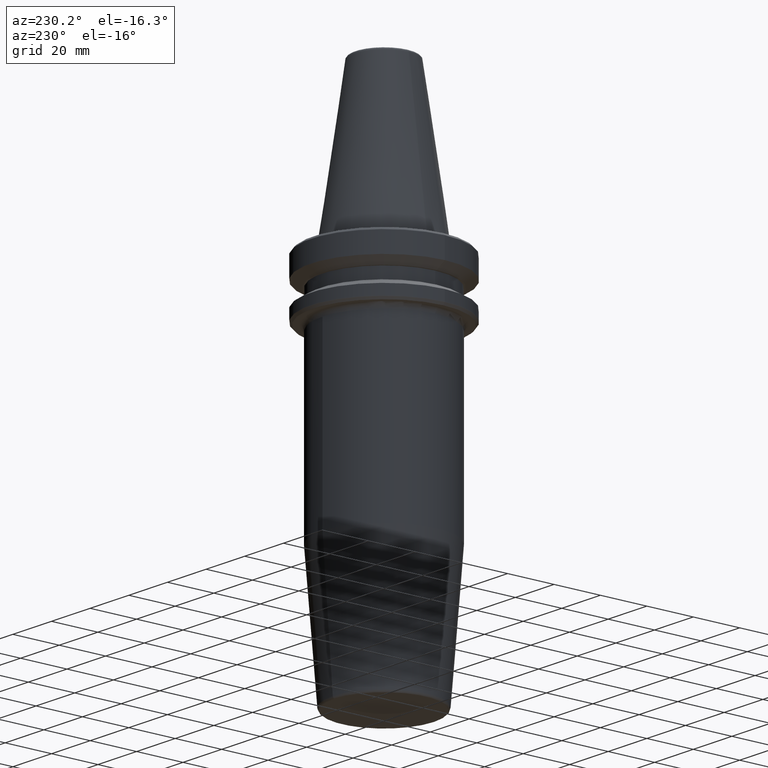
[diagram: clean part render]
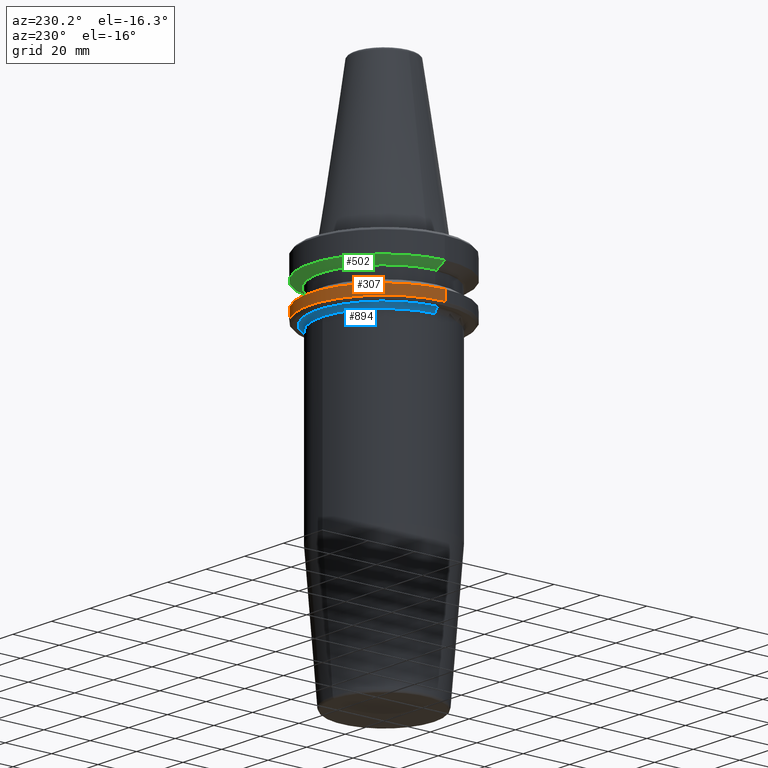
[diagram: same view with three faces highlighted in distinct colors, each labeled with its STEP entity id]
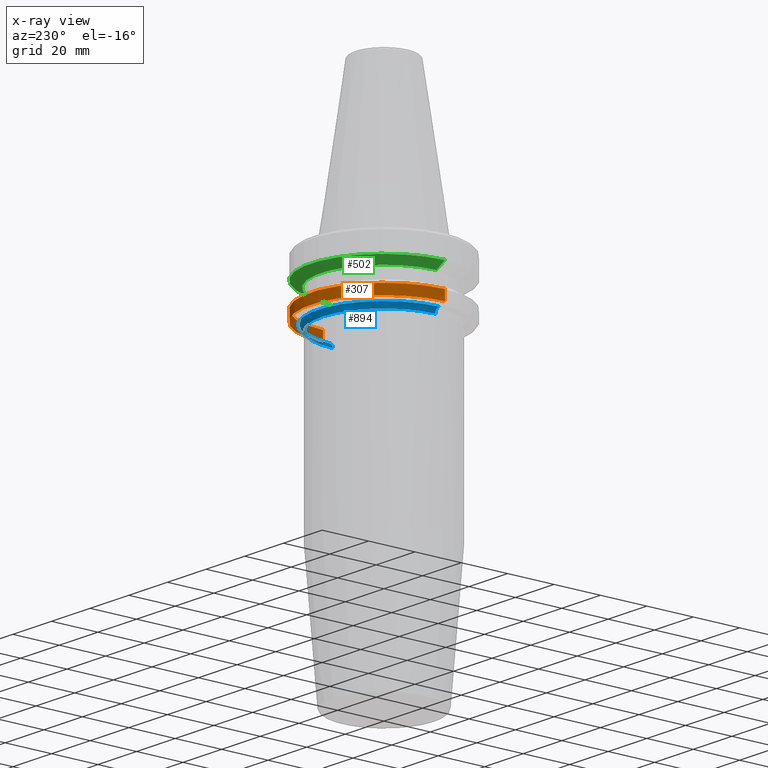
[diagram: x-ray of the same camera — body ghosted, the three highlighted faces saturated]
A machine part, auxiliary view with three faces highlighted in distinct colors.
The next image is the same camera in x-ray (body ghosted, the three faces saturated) — at least one of them is partly hidden behind the body in this view.
Their STEP definitions:

[orange] entity #307 — the highlighted cylindrical surface (partial cylindrical patch) has radius 31.5 mm, axis along (-0, -0, 1).
#71 = EDGE_CURVE ( 'NONE', #1021, #1263, #511, .T. ) ;
#143 = VECTOR ( 'NONE', #1161, 1000.000000000000000 ) ;
#228 = CARTESIAN_POINT ( 'NONE',  ( 0.0000000000000000000, 0.0000000000000000000, 69.75694866325665100 ) ) ;
#234 = CARTESIAN_POINT ( 'NONE',  ( 31.50000000000000000, 0.0000000000000000000, -25.83431457505076900 ) ) ;
#241 = CARTESIAN_POINT ( 'NONE',  ( 0.0000000000000000000, 0.0000000000000000000, -25.83431457505076900 ) ) ;
#275 = EDGE_CURVE ( 'NONE', #1021, #503, #683, .T. ) ;
#291 = DIRECTION ( 'NONE',  ( -0.0000000000000000000, -0.0000000000000000000, 1.000000000000000000 ) ) ;
#307 = ADVANCED_FACE ( 'NONE', ( #657 ), #1118, .T. ) ;
#367 = CARTESIAN_POINT ( 'NONE',  ( 31.50000000000000000, 0.0000000000000000000, 69.75694866325665100 ) ) ;
#456 = CARTESIAN_POINT ( 'NONE',  ( -31.50000000000000000, 3.857637417314162700E-015, -21.60014200631675500 ) ) ;
#473 = DIRECTION ( 'NONE',  ( -0.0000000000000000000, -0.0000000000000000000, 1.000000000000000000 ) ) ;
#477 = EDGE_CURVE ( 'NONE', #1263, #1143, #956, .T. ) ;
#493 = AXIS2_PLACEMENT_3D ( 'NONE', #241, #291, #972 ) ;
#503 = VERTEX_POINT ( 'NONE', #740 ) ;
#511 = CIRCLE ( 'NONE', #493, 31.50000000000000000 ) ;
#525 = EDGE_LOOP ( 'NONE', ( #646, #728, #808, #1281 ) ) ;
#559 = DIRECTION ( 'NONE',  ( -0.0000000000000000000, -0.0000000000000000000, 1.000000000000000000 ) ) ;
#646 = ORIENTED_EDGE ( 'NONE', *, *, #71, .T. ) ;
#657 = FACE_OUTER_BOUND ( 'NONE', #525, .T. ) ;
#666 = CARTESIAN_POINT ( 'NONE',  ( -31.50000000000000000, 3.857637417314162700E-015, -25.83431457505076900 ) ) ;
#683 = LINE ( 'NONE', #367, #143 ) ;
#701 = VECTOR ( 'NONE', #559, 1000.000000000000000 ) ;
#728 = ORIENTED_EDGE ( 'NONE', *, *, #477, .T. ) ;
#734 = AXIS2_PLACEMENT_3D ( 'NONE', #228, #751, #920 ) ;
#740 = CARTESIAN_POINT ( 'NONE',  ( 31.50000000000000000, 0.0000000000000000000, -21.60014200631675500 ) ) ;
#751 = DIRECTION ( 'NONE',  ( -0.0000000000000000000, -0.0000000000000000000, 1.000000000000000000 ) ) ;
#808 = ORIENTED_EDGE ( 'NONE', *, *, #1241, .F. ) ;
#819 = AXIS2_PLACEMENT_3D ( 'NONE', #1061, #473, #1158 ) ;
#920 = DIRECTION ( 'NONE',  ( 1.000000000000000000, 0.0000000000000000000, 0.0000000000000000000 ) ) ;
#956 = LINE ( 'NONE', #1206, #701 ) ;
#972 = DIRECTION ( 'NONE',  ( 1.000000000000000000, 0.0000000000000000000, 0.0000000000000000000 ) ) ;
#1021 = VERTEX_POINT ( 'NONE', #234 ) ;
#1061 = CARTESIAN_POINT ( 'NONE',  ( 0.0000000000000000000, 0.0000000000000000000, -21.60014200631675500 ) ) ;
#1118 = CYLINDRICAL_SURFACE ( 'NONE', #734, 31.50000000000000000 ) ;
#1143 = VERTEX_POINT ( 'NONE', #456 ) ;
#1158 = DIRECTION ( 'NONE',  ( 1.000000000000000000, 0.0000000000000000000, 0.0000000000000000000 ) ) ;
#1161 = DIRECTION ( 'NONE',  ( -0.0000000000000000000, -0.0000000000000000000, 1.000000000000000000 ) ) ;
#1206 = CARTESIAN_POINT ( 'NONE',  ( -31.50000000000000000, 3.857637417314162700E-015, 69.75694866325665100 ) ) ;
#1241 = EDGE_CURVE ( 'NONE', #503, #1143, #1259, .T. ) ;
#1259 = CIRCLE ( 'NONE', #819, 31.50000000000000000 ) ;
#1263 = VERTEX_POINT ( 'NONE', #666 ) ;
#1281 = ORIENTED_EDGE ( 'NONE', *, *, #275, .F. ) ;

[blue] entity #894 — the highlighted toroidal blend (fillet) surface has major radius 28.5 mm and minor (blend) radius 2 mm.
#100 = CARTESIAN_POINT ( 'NONE',  ( 0.0000000000000000000, 1.510090789926056700E-016, -28.99999999999999600 ) ) ;
#130 = DIRECTION ( 'NONE',  ( -1.000000000000000000, 0.0000000000000000000, 0.0000000000000000000 ) ) ;
#139 = CIRCLE ( 'NONE', #186, 26.49999999999999300 ) ;
#167 = CARTESIAN_POINT ( 'NONE',  ( 28.49999999999998900, 3.641252456562561600E-015, -27.00000000000000000 ) ) ;
#186 = AXIS2_PLACEMENT_3D ( 'NONE', #334, #1009, #428 ) ;
#200 = ORIENTED_EDGE ( 'NONE', *, *, #1075, .F. ) ;
#207 = FACE_OUTER_BOUND ( 'NONE', #1067, .T. ) ;
#219 = VERTEX_POINT ( 'NONE', #1020 ) ;
#300 = CARTESIAN_POINT ( 'NONE',  ( -28.49999999999998900, 1.510090789926056700E-016, -28.99999999999999600 ) ) ;
#327 = DIRECTION ( 'NONE',  ( -1.000000000000000000, 0.0000000000000000000, 0.0000000000000000000 ) ) ;
#330 = EDGE_CURVE ( 'NONE', #488, #1057, #852, .T. ) ;
#334 = CARTESIAN_POINT ( 'NONE',  ( 0.0000000000000000000, 1.510090789926056700E-016, -28.99999999999999600 ) ) ;
#362 = AXIS2_PLACEMENT_3D ( 'NONE', #300, #979, #401 ) ;
#379 = CIRCLE ( 'NONE', #1058, 2.000000000000001800 ) ;
#397 = EDGE_CURVE ( 'NONE', #630, #219, #565, .T. ) ;
#401 = DIRECTION ( 'NONE',  ( 0.0000000000000000000, 0.0000000000000000000, -1.000000000000000000 ) ) ;
#428 = DIRECTION ( 'NONE',  ( -1.000000000000000000, 0.0000000000000000000, 0.0000000000000000000 ) ) ;
#441 = CARTESIAN_POINT ( 'NONE',  ( -28.49999999999998900, 1.510090789926056700E-016, -27.00000000000000000 ) ) ;
#488 = VERTEX_POINT ( 'NONE', #167 ) ;
#516 = DIRECTION ( 'NONE',  ( -1.000000000000000000, 0.0000000000000000000, 0.0000000000000000000 ) ) ;
#530 = CARTESIAN_POINT ( 'NONE',  ( 26.49999999999999600, 3.518787776647826400E-015, -28.99999999999999600 ) ) ;
#551 = DIRECTION ( 'NONE',  ( -1.224646799147353200E-016, 1.000000000000000000, 0.0000000000000000000 ) ) ;
#565 = CIRCLE ( 'NONE', #1188, 26.49999999999999300 ) ;
#609 = CIRCLE ( 'NONE', #362, 2.000000000000001800 ) ;
#630 = VERTEX_POINT ( 'NONE', #961 ) ;
#724 = DIRECTION ( 'NONE',  ( 0.0000000000000000000, 0.0000000000000000000, -1.000000000000000000 ) ) ;
#742 = EDGE_CURVE ( 'NONE', #630, #1057, #609, .T. ) ;
#771 = CARTESIAN_POINT ( 'NONE',  ( 0.0000000000000000000, 1.510090789926056700E-016, -28.99999999999999600 ) ) ;
#852 = CIRCLE ( 'NONE', #927, 28.49999999999998900 ) ;
#894 = ADVANCED_FACE ( 'NONE', ( #207 ), #966, .F. ) ;
#903 = DIRECTION ( 'NONE',  ( 0.0000000000000000000, 0.0000000000000000000, -1.000000000000000000 ) ) ;
#916 = ORIENTED_EDGE ( 'NONE', *, *, #953, .F. ) ;
#927 = AXIS2_PLACEMENT_3D ( 'NONE', #1022, #1125, #130 ) ;
#936 = ORIENTED_EDGE ( 'NONE', *, *, #330, .F. ) ;
#953 = EDGE_CURVE ( 'NONE', #219, #973, #139, .T. ) ;
#961 = CARTESIAN_POINT ( 'NONE',  ( -26.49999999999999600, 1.510090789926056700E-016, -28.99999999999999600 ) ) ;
#966 = TOROIDAL_SURFACE ( 'NONE', #1146, 28.49999999999998900, 2.000000000000000000 ) ;
#973 = VERTEX_POINT ( 'NONE', #530 ) ;
#979 = DIRECTION ( 'NONE',  ( -0.0000000000000000000, -1.000000000000000000, -0.0000000000000000000 ) ) ;
#980 = ORIENTED_EDGE ( 'NONE', *, *, #397, .F. ) ;
#1009 = DIRECTION ( 'NONE',  ( 0.0000000000000000000, 0.0000000000000000000, -1.000000000000000000 ) ) ;
#1020 = CARTESIAN_POINT ( 'NONE',  ( 0.0000000000000000000, 26.49999999999999300, -28.99999999999999600 ) ) ;
#1022 = CARTESIAN_POINT ( 'NONE',  ( 0.0000000000000000000, 1.510090789926056700E-016, -27.00000000000000400 ) ) ;
#1057 = VERTEX_POINT ( 'NONE', #441 ) ;
#1058 = AXIS2_PLACEMENT_3D ( 'NONE', #1136, #551, #1228 ) ;
#1067 = EDGE_LOOP ( 'NONE', ( #200, #916, #980, #1204, #936 ) ) ;
#1075 = EDGE_CURVE ( 'NONE', #973, #488, #379, .T. ) ;
#1125 = DIRECTION ( 'NONE',  ( -0.0000000000000000000, -0.0000000000000000000, 1.000000000000000000 ) ) ;
#1136 = CARTESIAN_POINT ( 'NONE',  ( 28.49999999999998900, 3.641252456562561600E-015, -28.99999999999999600 ) ) ;
#1146 = AXIS2_PLACEMENT_3D ( 'NONE', #100, #903, #516 ) ;
#1188 = AXIS2_PLACEMENT_3D ( 'NONE', #771, #724, #327 ) ;
#1204 = ORIENTED_EDGE ( 'NONE', *, *, #742, .T. ) ;
#1228 = DIRECTION ( 'NONE',  ( -1.000000000000000000, -1.224646799147351500E-016, 0.0000000000000000000 ) ) ;

[green] entity #502 — the highlighted conical surface has half-angle 60 deg.
#47 = DIRECTION ( 'NONE',  ( 1.000000000000000000, 0.0000000000000000000, 0.0000000000000000000 ) ) ;
#69 = LINE ( 'NONE', #1087, #546 ) ;
#128 = VERTEX_POINT ( 'NONE', #1034 ) ;
#135 = CARTESIAN_POINT ( 'NONE',  ( 0.0000000000000000000, 0.0000000000000000000, -11.59985799368323700 ) ) ;
#157 = DIRECTION ( 'NONE',  ( -0.0000000000000000000, -0.0000000000000000000, 1.000000000000000000 ) ) ;
#196 = CARTESIAN_POINT ( 'NONE',  ( -27.16962701892216000, 3.592478546794604700E-015, -14.10000000000000100 ) ) ;
#323 = VERTEX_POINT ( 'NONE', #842 ) ;
#328 = EDGE_CURVE ( 'NONE', #826, #1002, #627, .T. ) ;
#344 = DIRECTION ( 'NONE',  ( -0.0000000000000000000, -0.0000000000000000000, 1.000000000000000000 ) ) ;
#492 = AXIS2_PLACEMENT_3D ( 'NONE', #761, #157, #857 ) ;
#502 = ADVANCED_FACE ( 'NONE', ( #929 ), #1051, .T. ) ;
#540 = ORIENTED_EDGE ( 'NONE', *, *, #1198, .F. ) ;
#546 = VECTOR ( 'NONE', #693, 1000.000000000000100 ) ;
#578 = AXIS2_PLACEMENT_3D ( 'NONE', #135, #664, #47 ) ;
#583 = ORIENTED_EDGE ( 'NONE', *, *, #328, .T. ) ;
#597 = VECTOR ( 'NONE', #1024, 1000.000000000000100 ) ;
#601 = AXIS2_PLACEMENT_3D ( 'NONE', #928, #344, #1023 ) ;
#627 = LINE ( 'NONE', #783, #597 ) ;
#664 = DIRECTION ( 'NONE',  ( -0.0000000000000000000, -0.0000000000000000000, 1.000000000000000000 ) ) ;
#693 = DIRECTION ( 'NONE',  ( 0.8660254037844393700, 0.0000000000000000000, 0.4999999999999985000 ) ) ;
#741 = CIRCLE ( 'NONE', #492, 31.50000000000000000 ) ;
#761 = CARTESIAN_POINT ( 'NONE',  ( 0.0000000000000000000, 0.0000000000000000000, -11.59985799368323700 ) ) ;
#781 = EDGE_CURVE ( 'NONE', #128, #323, #69, .T. ) ;
#783 = CARTESIAN_POINT ( 'NONE',  ( -31.50000000000000000, 3.857637417314162700E-015, -11.59985799368323700 ) ) ;
#826 = VERTEX_POINT ( 'NONE', #196 ) ;
#829 = CARTESIAN_POINT ( 'NONE',  ( -31.50000000000000000, 3.857637417314162700E-015, -11.59985799368323700 ) ) ;
#842 = CARTESIAN_POINT ( 'NONE',  ( 31.50000000000000000, 0.0000000000000000000, -11.59985799368323700 ) ) ;
#857 = DIRECTION ( 'NONE',  ( 1.000000000000000000, 0.0000000000000000000, 0.0000000000000000000 ) ) ;
#861 = ORIENTED_EDGE ( 'NONE', *, *, #781, .F. ) ;
#878 = ORIENTED_EDGE ( 'NONE', *, *, #1001, .T. ) ;
#895 = CIRCLE ( 'NONE', #601, 27.16962701892216000 ) ;
#928 = CARTESIAN_POINT ( 'NONE',  ( 0.0000000000000000000, 0.0000000000000000000, -14.10000000000000100 ) ) ;
#929 = FACE_OUTER_BOUND ( 'NONE', #1107, .T. ) ;
#1001 = EDGE_CURVE ( 'NONE', #128, #826, #895, .T. ) ;
#1002 = VERTEX_POINT ( 'NONE', #829 ) ;
#1023 = DIRECTION ( 'NONE',  ( 1.000000000000000000, 0.0000000000000000000, 0.0000000000000000000 ) ) ;
#1024 = DIRECTION ( 'NONE',  ( -0.8660254037844393700, 1.060575238724907800E-016, 0.4999999999999985000 ) ) ;
#1034 = CARTESIAN_POINT ( 'NONE',  ( 27.16962701892216000, 0.0000000000000000000, -14.10000000000000100 ) ) ;
#1051 = CONICAL_SURFACE ( 'NONE', #578, 31.50000000000000000, 1.047197551196599400 ) ;
#1087 = CARTESIAN_POINT ( 'NONE',  ( 31.50000000000000000, 0.0000000000000000000, -11.59985799368323700 ) ) ;
#1107 = EDGE_LOOP ( 'NONE', ( #878, #583, #540, #861 ) ) ;
#1198 = EDGE_CURVE ( 'NONE', #323, #1002, #741, .T. ) ;